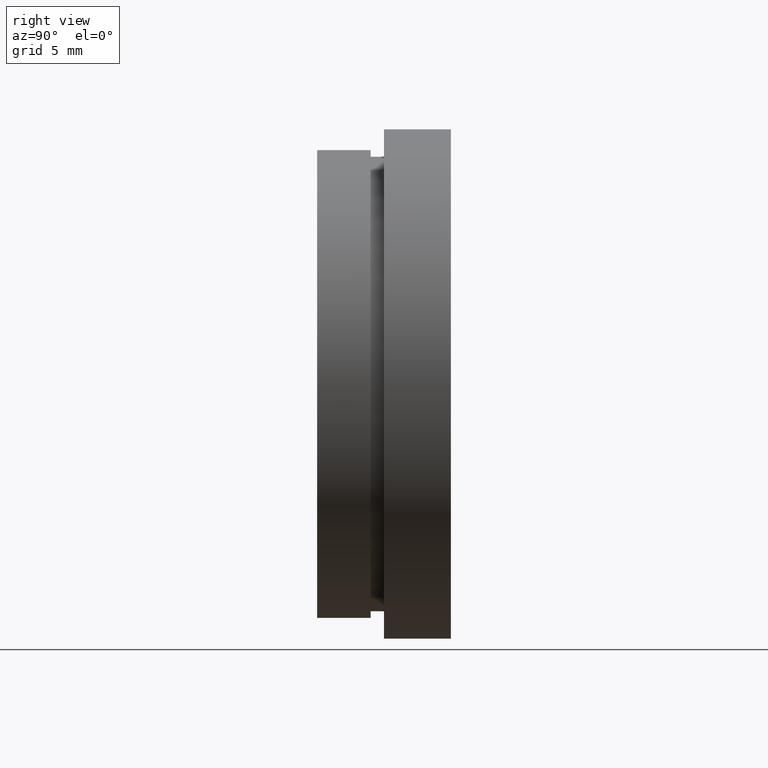
[diagram: clean part render]
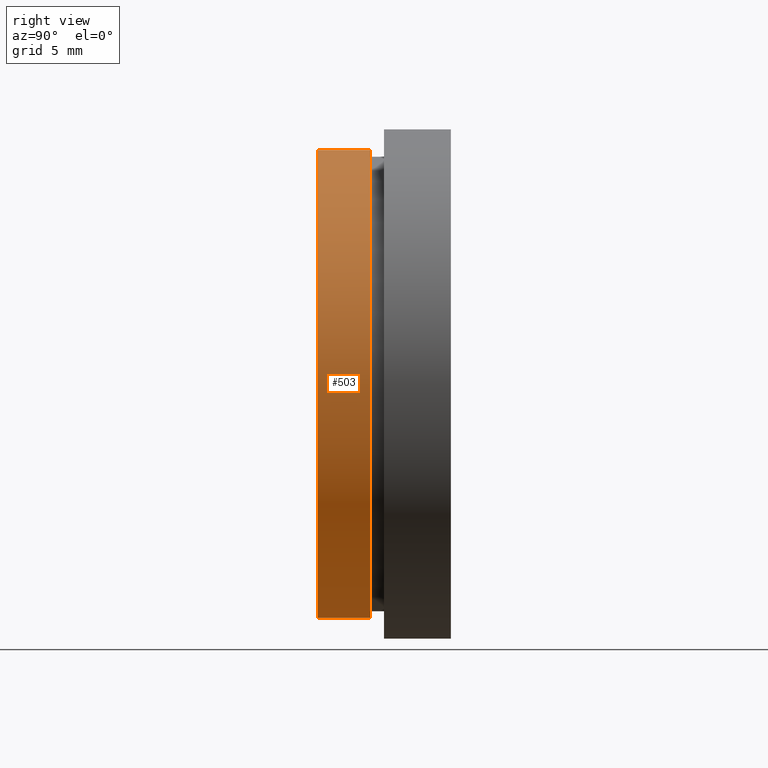
[diagram: same view with one face highlighted and labeled with its STEP entity id]
A machine part, right view. The second image highlights one B-rep face of the part: STEP entity #503.
In plain terms, the highlighted cylindrical surface (partial cylindrical patch) has radius 17.5 mm, axis along (-0, 1, -0).
Its self-contained STEP definition (entity closure, byte-faithful):
#11 = DIRECTION ( 'NONE',  ( 0.0000000000000000000, 0.0000000000000000000, 1.000000000000000000 ) ) ;
#14 = LINE ( 'NONE', #514, #220 ) ;
#21 = EDGE_CURVE ( 'NONE', #217, #201, #481, .T. ) ;
#33 = DIRECTION ( 'NONE',  ( -0.0000000000000000000, 1.000000000000000000, -0.0000000000000000000 ) ) ;
#62 = FACE_OUTER_BOUND ( 'NONE', #451, .T. ) ;
#81 = ORIENTED_EDGE ( 'NONE', *, *, #206, .T. ) ;
#88 = VERTEX_POINT ( 'NONE', #235 ) ;
#95 = CARTESIAN_POINT ( 'NONE',  ( 2.143131898507868200E-015, 4.000000000000000000, -17.50000000000000000 ) ) ;
#116 = CYLINDRICAL_SURFACE ( 'NONE', #478, 17.50000000000000000 ) ;
#165 = ORIENTED_EDGE ( 'NONE', *, *, #465, .T. ) ;
#168 = EDGE_CURVE ( 'NONE', #201, #420, #426, .T. ) ;
#197 = ORIENTED_EDGE ( 'NONE', *, *, #168, .F. ) ;
#201 = VERTEX_POINT ( 'NONE', #552 ) ;
#206 = EDGE_CURVE ( 'NONE', #88, #420, #14, .T. ) ;
#213 = AXIS2_PLACEMENT_3D ( 'NONE', #445, #507, #399 ) ;
#217 = VERTEX_POINT ( 'NONE', #509 ) ;
#220 = VECTOR ( 'NONE', #598, 1000.000000000000000 ) ;
#235 = CARTESIAN_POINT ( 'NONE',  ( 2.143131898507868200E-015, 0.0000000000000000000, -17.50000000000000000 ) ) ;
#303 = VECTOR ( 'NONE', #33, 1000.000000000000000 ) ;
#360 = CIRCLE ( 'NONE', #566, 17.50000000000000000 ) ;
#399 = DIRECTION ( 'NONE',  ( 0.0000000000000000000, 0.0000000000000000000, 1.000000000000000000 ) ) ;
#408 = CARTESIAN_POINT ( 'NONE',  ( 0.0000000000000000000, 0.0000000000000000000, 0.0000000000000000000 ) ) ;
#420 = VERTEX_POINT ( 'NONE', #95 ) ;
#425 = CARTESIAN_POINT ( 'NONE',  ( 0.0000000000000000000, 13.74468085106383300, 0.0000000000000000000 ) ) ;
#426 = CIRCLE ( 'NONE', #213, 17.50000000000000000 ) ;
#445 = CARTESIAN_POINT ( 'NONE',  ( 0.0000000000000000000, 4.000000000000000000, 0.0000000000000000000 ) ) ;
#451 = EDGE_LOOP ( 'NONE', ( #165, #81, #197, #605 ) ) ;
#465 = EDGE_CURVE ( 'NONE', #217, #88, #360, .T. ) ;
#478 = AXIS2_PLACEMENT_3D ( 'NONE', #425, #487, #11 ) ;
#481 = LINE ( 'NONE', #524, #303 ) ;
#487 = DIRECTION ( 'NONE',  ( -0.0000000000000000000, 1.000000000000000000, -0.0000000000000000000 ) ) ;
#503 = ADVANCED_FACE ( 'NONE', ( #62 ), #116, .T. ) ;
#507 = DIRECTION ( 'NONE',  ( -0.0000000000000000000, 1.000000000000000000, -0.0000000000000000000 ) ) ;
#509 = CARTESIAN_POINT ( 'NONE',  ( 0.0000000000000000000, 0.0000000000000000000, 17.50000000000000000 ) ) ;
#514 = CARTESIAN_POINT ( 'NONE',  ( 2.143131898507868200E-015, 13.74468085106383300, -17.50000000000000000 ) ) ;
#524 = CARTESIAN_POINT ( 'NONE',  ( 0.0000000000000000000, 13.74468085106383300, 17.50000000000000000 ) ) ;
#548 = DIRECTION ( 'NONE',  ( 0.0000000000000000000, 0.0000000000000000000, 1.000000000000000000 ) ) ;
#549 = DIRECTION ( 'NONE',  ( -0.0000000000000000000, 1.000000000000000000, -0.0000000000000000000 ) ) ;
#552 = CARTESIAN_POINT ( 'NONE',  ( 0.0000000000000000000, 4.000000000000000000, 17.50000000000000000 ) ) ;
#566 = AXIS2_PLACEMENT_3D ( 'NONE', #408, #549, #548 ) ;
#598 = DIRECTION ( 'NONE',  ( -0.0000000000000000000, 1.000000000000000000, -0.0000000000000000000 ) ) ;
#605 = ORIENTED_EDGE ( 'NONE', *, *, #21, .F. ) ;